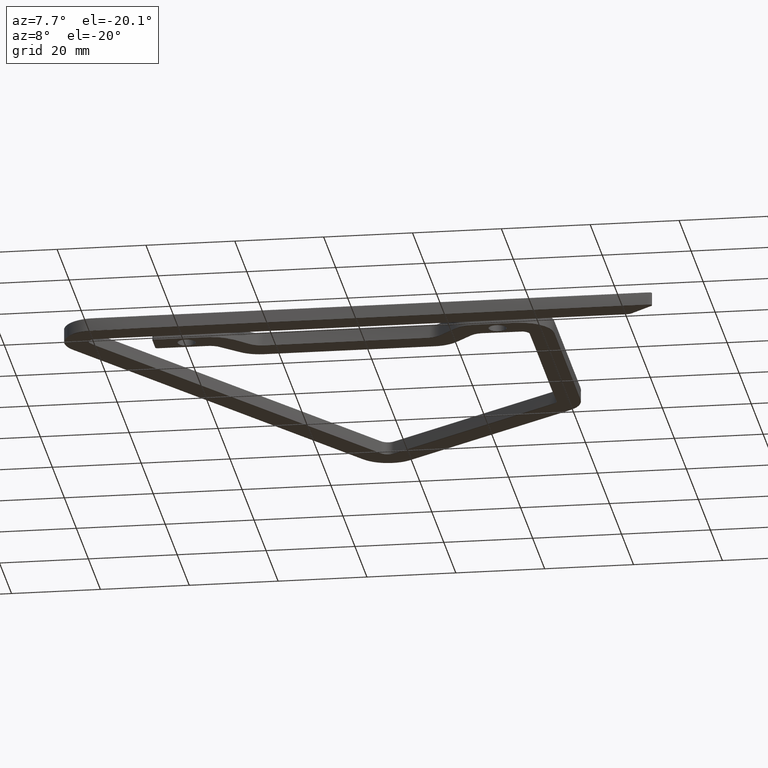
[diagram: clean part render]
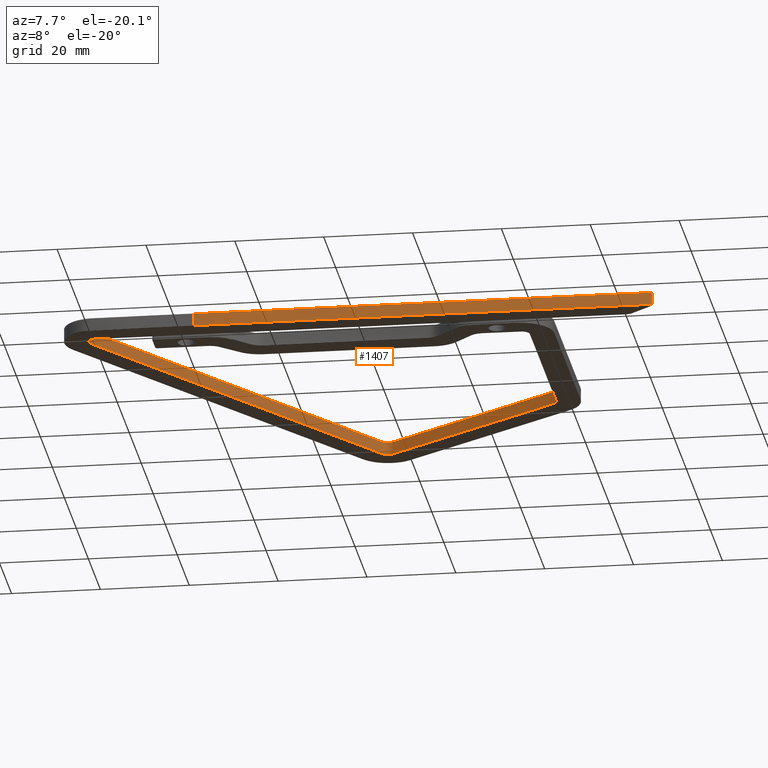
[diagram: same view with one face highlighted and labeled with its STEP entity id]
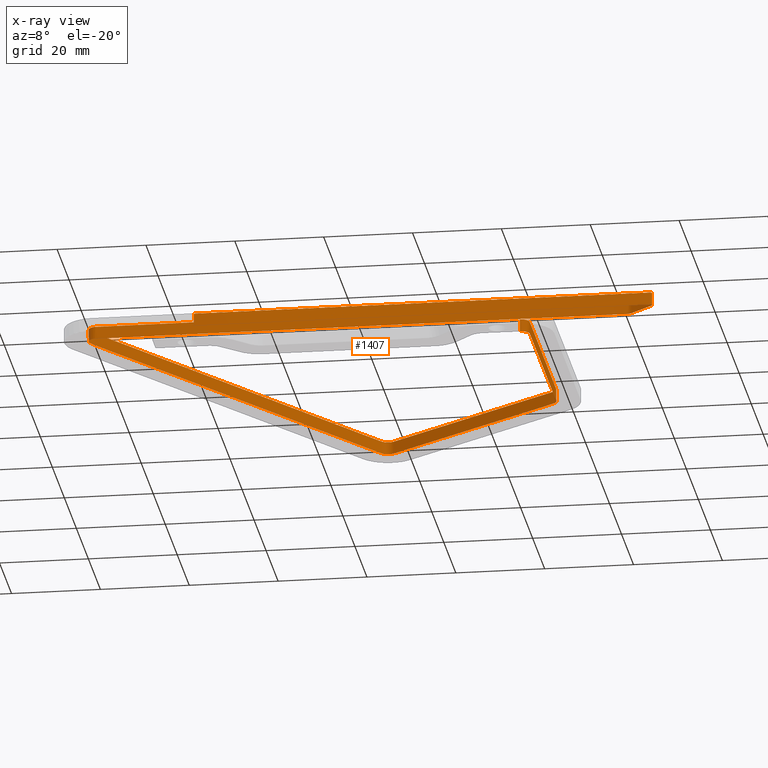
[diagram: x-ray of the same camera — body ghosted, the highlighted face saturated]
A machine part, auxiliary view. The second image highlights one B-rep face of the part: STEP entity #1407.
The next image is the same camera in x-ray: the body ghosted, the highlighted face saturated — about 0% of this face is hidden behind the body in this view.
In plain terms, the highlighted face is a freeform B-spline surface patch.
Its self-contained STEP definition (entity closure, byte-faithful):
#7 = CARTESIAN_POINT ( 'NONE',  ( 96.21894280067000693, 34.48193328533962188, 2.900000000000001243 ) ) ;
#37 = DIRECTION ( 'NONE',  ( -0.0000000000000000000, -0.0000000000000000000, -1.000000000000000000 ) ) ;
#41 = CARTESIAN_POINT ( 'NONE',  ( -1.662912527939040874, 8.613161268570534546, 2.900000000000001688 ) ) ;
#49 = CARTESIAN_POINT ( 'NONE',  ( 96.12964492993219778, 14.73710350965732374, 0.09999999999999845124 ) ) ;
#73 = CARTESIAN_POINT ( 'NONE',  ( -1.669430305399574488, 6.365667258156727293, 2.900000000000002132 ) ) ;
#98 = ORIENTED_EDGE ( 'NONE', *, *, #781, .T. ) ;
#105 = CARTESIAN_POINT ( 'NONE',  ( 94.21894280067006378, 13.35870913111391722, 2.900000000000000355 ) ) ;
#110 = CARTESIAN_POINT ( 'NONE',  ( 96.21894280067003535, 58.96053537486641716, 2.900000000000000355 ) ) ;
#142 = CARTESIAN_POINT ( 'NONE',  ( 121.5986268316706571, 4.194230805782643401, 2.900000000000000799 ) ) ;
#180 = CARTESIAN_POINT ( 'NONE',  ( -0.3101443401820461743, 5.519568920171669113, 2.900000000000000799 ) ) ;
#188 = CARTESIAN_POINT ( 'NONE',  ( 96.21894280067003535, 49.09433591561645471, 0.09999999999999982514 ) ) ;
#217 = CARTESIAN_POINT ( 'NONE',  ( 125.5252945399459890, 0.8993653800130788634, 2.899999999999999911 ) ) ;
#252 = CARTESIAN_POINT ( 'NONE',  ( 119.5703320633170819, 5.484750445895559601, 2.899999999999999911 ) ) ;
#287 = CARTESIAN_POINT ( 'NONE',  ( 125.3935086759740756, 0.02441142024603577126, 2.899999999999999911 ) ) ;
#331 = CARTESIAN_POINT ( 'NONE',  ( 54.79265064534521912, 88.96295982538471492, 0.09999999999999210909 ) ) ;
#349 = CARTESIAN_POINT ( 'NONE',  ( 96.21894280066999272, 15.35870913111391900, 2.900000000000001243 ) ) ;
#363 = CARTESIAN_POINT ( 'NONE',  ( 34.76788293554191966, 61.40357061110498904, 2.900000000000001243 ) ) ;
#383 = CARTESIAN_POINT ( 'NONE',  ( 125.5586794392133072, 0.8722857433833154372, 0.1000000000000016709 ) ) ;
#416 = CARTESIAN_POINT ( 'NONE',  ( -0.1034351531348660230, 5.499999999999989342, 0.09999999999999976963 ) ) ;
#426 = CARTESIAN_POINT ( 'NONE',  ( 122.2483281553851242, 3.649066664678452643, 2.900000000000001243 ) ) ;
#448 = CARTESIAN_POINT ( 'NONE',  ( -1.739700917475315523, 8.495409123085179814, 0.09999999999999910349 ) ) ;
#455 = CARTESIAN_POINT ( 'NONE',  ( 96.21894280067000693, 15.60044719721685169, 2.900000000000002576 ) ) ;
#480 = CARTESIAN_POINT ( 'NONE',  ( 4.928110533451541819, 5.499999999999989342, 0.09999999999999975575 ) ) ;
#488 = CARTESIAN_POINT ( 'NONE',  ( 52.94184487968831121, 87.73952379296086690, 2.900000000000001688 ) ) ;
#514 = CARTESIAN_POINT ( 'NONE',  ( 55.32420834904780804, 88.52858161741595211, 0.09999999999999910349 ) ) ;
#522 = CARTESIAN_POINT ( 'NONE',  ( 95.41708266030222774, 60.93239245693894901, 2.900000000000000799 ) ) ;
#555 = CARTESIAN_POINT ( 'NONE',  ( 55.01081051357603968, 88.61751426554006628, 2.899999999999998135 ) ) ;
#577 = CARTESIAN_POINT ( 'NONE',  ( 95.44690880920389020, 60.90819622387207488, 0.09999999999999778511 ) ) ;
#587 = CARTESIAN_POINT ( 'NONE',  ( -1.850914337502815643, 6.730231727285798549, 2.900000000000001243 ) ) ;
#612 = CARTESIAN_POINT ( 'NONE',  ( 95.22722393123679296, 61.05979675962291253, 0.09999999999999779898 ) ) ;
#622 = CARTESIAN_POINT ( 'NONE',  ( 49.77639510909655485, 83.15245922145881252, 2.899999999999999911 ) ) ;
#630 = CARTESIAN_POINT ( 'NONE',  ( 94.21894280067006378, 13.35870913111391722, 0.09999999999999965861 ) ) ;
#726 = CARTESIAN_POINT ( 'NONE',  ( 96.21894280066999272, 15.35870913111391900, 0.09999999999999245603 ) ) ;
#730 = CARTESIAN_POINT ( 'NONE',  ( 119.3679943487727968, 5.500426910037174544, 2.900000000000000799 ) ) ;
#761 = CARTESIAN_POINT ( 'NONE',  ( 124.7760346421878950, 1.528069083877816814, 0.09999999999999975575 ) ) ;
#764 = CARTESIAN_POINT ( 'NONE',  ( 89.81942781831651246, 5.500000000000008882, 2.900000000000000355 ) ) ;
#781 = EDGE_CURVE ( 'NONE', #5320, #4764, #1029, .T. ) ;
#800 = CARTESIAN_POINT ( 'NONE',  ( 120.6304073967535118, 5.006663376520280373, 2.899999999999999911 ) ) ;
#842 = CARTESIAN_POINT ( 'NONE',  ( -1.835517616785126815, 5.499999999999973355, 0.09999999999999249767 ) ) ;
#876 = CARTESIAN_POINT ( 'NONE',  ( 122.2483281553851242, 3.649066664678452643, 0.09999999999999245603 ) ) ;
#895 = CARTESIAN_POINT ( 'NONE',  ( 125.3996810991241091, 0.02765937304082516715, 0.09999999999999913125 ) ) ;
#906 = CARTESIAN_POINT ( 'NONE',  ( 123.8965498565662386, 2.266044443118975238, 2.900000000000001243 ) ) ;
#928 = CARTESIAN_POINT ( 'NONE',  ( 26.35147508182502918, 49.20732392168764591, 0.09999999999999975575 ) ) ;
#937 = CARTESIAN_POINT ( 'NONE',  ( 95.85824930401631150, 14.20362827286972163, 2.899999999999999023 ) ) ;
#960 = CARTESIAN_POINT ( 'NONE',  ( 0.5255080576883410792, 5.499999999999990230, 0.09999999999999976963 ) ) ;
#969 = CARTESIAN_POINT ( 'NONE',  ( 82.15556042219267852, 70.08031382690435862, 2.900000000000001243 ) ) ;
#991 = CARTESIAN_POINT ( 'NONE',  ( 120.4179831461176207, 5.169278409715654554, 0.09999999999999910349 ) ) ;
#1018 = VERTEX_POINT ( 'NONE', #105 ) ;
#1024 = CARTESIAN_POINT ( 'NONE',  ( 55.19337869877537628, 88.57252792141468944, 0.1000000000000004080 ) ) ;
#1029 = LINE ( 'NONE', #4156, #1349 ) ;
#1032 = CARTESIAN_POINT ( 'NONE',  ( 95.08713450679751134, 61.15646992162913165, 2.900000000000003020 ) ) ;
#1057 = CARTESIAN_POINT ( 'NONE',  ( 10.76896077500463456, 26.62664676932903873, 0.09999999999999975575 ) ) ;
#1065 = CARTESIAN_POINT ( 'NONE',  ( 95.71733756115908420, 60.67617961918844571, 2.900000000000000799 ) ) ;
#1097 = CARTESIAN_POINT ( 'NONE',  ( -2.011734194703503675, 7.666160446861231215, 2.899999999999999911 ) ) ;
#1106 = CARTESIAN_POINT ( 'NONE',  ( 94.41259131196564169, 13.36752039184894869, 0.1000000000000003803 ) ) ;
#1122 = CARTESIAN_POINT ( 'NONE',  ( 95.55036925853777063, 60.82381422320698050, 0.09999999999999845124 ) ) ;
#1132 = CARTESIAN_POINT ( 'NONE',  ( 55.26572882147539900, 88.54925701762053336, 2.899999999999998135 ) ) ;
#1141 = CARTESIAN_POINT ( 'NONE',  ( 94.24333449672938912, 13.35882086611803743, 0.09999999999999910349 ) ) ;
#1166 = CARTESIAN_POINT ( 'NONE',  ( 101.3719213716443761, -3.171558779870961713E-15, 2.899999999999999911 ) ) ;
#1200 = CARTESIAN_POINT ( 'NONE',  ( -0.4462463425858544386, 5.545680046173584898, 2.900000000000000355 ) ) ;
#1208 = CARTESIAN_POINT ( 'NONE',  ( 95.47524190458655369, 13.79064053184755068, 0.09999999999999910349 ) ) ;
#1235 = CARTESIAN_POINT ( 'NONE',  ( -0.7067457300811643695, 5.624096816675404398, 2.900000000000000355 ) ) ;
#1271 = CARTESIAN_POINT ( 'NONE',  ( 122.7915607669213216, -3.234050716792778539E-16, 2.900000000000000355 ) ) ;
#1304 = CARTESIAN_POINT ( 'NONE',  ( 121.0607099687202606, 4.645596647088345854, 0.09999999999999877043 ) ) ;
#1307 = CARTESIAN_POINT ( 'NONE',  ( 1.308657243949248317, 5.499999999999989342, 2.899999999999999911 ) ) ;
#1349 = VECTOR ( 'NONE', #37, 1000.000000000000000 ) ;
#1354 = CARTESIAN_POINT ( 'NONE',  ( 56.83464182742267923, -9.094957021439823720E-15, 0.09999999999999245603 ) ) ;
#1376 = CARTESIAN_POINT ( 'NONE',  ( 22.64027386468194791, -1.354706778582924256E-14, 0.09999999999999974187 ) ) ;
#1388 = CARTESIAN_POINT ( 'NONE',  ( 96.22013445181568159, 15.38187159650369296, 2.900000000000000799 ) ) ;
#1390 = CARTESIAN_POINT ( 'NONE',  ( 95.90710513327326225, 60.59062311676935053, 2.900000000000001243 ) ) ;
#1407 = ADVANCED_FACE ( 'NONE', ( #4066 ), #6571, .F. ) ;
#1418 = CARTESIAN_POINT ( 'NONE',  ( 95.57899864678380197, 13.86324983730670724, 2.899999999999999023 ) ) ;
#1420 = CARTESIAN_POINT ( 'NONE',  ( 120.6001064542039956, 5.032088886237930936, 2.900000000000001243 ) ) ;
#1442 = CARTESIAN_POINT ( 'NONE',  ( 53.39668408509412956, 88.23867584260203500, 0.1000000000000003941 ) ) ;
#1452 = CARTESIAN_POINT ( 'NONE',  ( 119.7896606317419241, 5.500000000000013323, 2.900000000000000799 ) ) ;
#1474 = CARTESIAN_POINT ( 'NONE',  ( -1.572281294317413591, 6.256836303454005765, 0.09999999999999911737 ) ) ;
#1482 = CARTESIAN_POINT ( 'NONE',  ( 96.21894280066999272, 16.83889279891940305, 2.899999999999999467 ) ) ;
#1484 = CARTESIAN_POINT ( 'NONE',  ( 53.64029233386113305, 88.75164649408742434, 0.09999999999999210909 ) ) ;
#1507 = CARTESIAN_POINT ( 'NONE',  ( 119.5210097529654831, 5.493287019251151371, 0.09999999999999975575 ) ) ;
#1539 = CARTESIAN_POINT ( 'NONE',  ( -0.2292130147480047897, 5.509072619489531419, 0.1000000000000010464 ) ) ;
#1547 = CARTESIAN_POINT ( 'NONE',  ( 96.22299423329454271, 59.34705609962890804, 2.900000000000000355 ) ) ;
#1573 = CARTESIAN_POINT ( 'NONE',  ( -1.797484513991860711, 6.583950218906611696, 0.09999999999999910349 ) ) ;
#1581 = CARTESIAN_POINT ( 'NONE',  ( 90.49640617066827986, 64.32444798950508869, 2.900000000000002132 ) ) ;
#1605 = CARTESIAN_POINT ( 'NONE',  ( 96.21894280067004956, 51.18748912988994704, 0.09999999999999983902 ) ) ;
#1614 = CARTESIAN_POINT ( 'NONE',  ( 52.86647702800755155, 87.63030796982984327, 2.900000000000000799 ) ) ;
#1622 = CARTESIAN_POINT ( 'NONE',  ( 94.97424880300368955, 13.49678575543643078, 0.09999999999999910349 ) ) ;
#1647 = CARTESIAN_POINT ( 'NONE',  ( -0.8319134693405536574, 5.676117231276328390, 2.899999999999998579 ) ) ;
#1656 = CARTESIAN_POINT ( 'NONE',  ( 96.21894280066993588, 17.99771021622897393, 0.09999999999999974187 ) ) ;
#1665 = ORIENTED_EDGE ( 'NONE', *, *, #2876, .T. ) ;
#1683 = CARTESIAN_POINT ( 'NONE',  ( 55.95664059407690161, 88.15971154780989139, 2.900000000000000799 ) ) ;
#1724 = CARTESIAN_POINT ( 'NONE',  ( 95.97570678657110932, 14.38353915965539365, 0.09999999999999843736 ) ) ;
#1743 = CARTESIAN_POINT ( 'NONE',  ( 80.94770686337628263, 70.91383158342721060, 0.09999999999999939493 ) ) ;
#1753 = CARTESIAN_POINT ( 'NONE',  ( 119.7726144326182975, 5.451623265195431500, 2.900000000000000799 ) ) ;
#1761 = CARTESIAN_POINT ( 'NONE',  ( 96.18123379980369236, 14.92653089800021249, 0.1000000000000003941 ) ) ;
#1790 = CARTESIAN_POINT ( 'NONE',  ( 125.7170179077414787, 0.6069480568285037236, 2.899999999999999911 ) ) ;
#1823 = CARTESIAN_POINT ( 'NONE',  ( 125.7115669566015441, 0.6674237104732073655, 0.09999999999999972800 ) ) ;
#1827 = CARTESIAN_POINT ( 'NONE',  ( 6.705655449703358251, 5.499999999999988454, 2.900000000000000355 ) ) ;
#1859 = CARTESIAN_POINT ( 'NONE',  ( 125.6163556804788755, 0.1651900073190799845, 0.09999999999999845124 ) ) ;
#1861 = CARTESIAN_POINT ( 'NONE',  ( 125.2531657625834356, -0.004223861649162077153, 2.899999999999999911 ) ) ;
#1871 = CARTESIAN_POINT ( 'NONE',  ( 125.5447715577473815, 0.8830222215594974999, 0.09999999999999245603 ) ) ;
#1891 = CARTESIAN_POINT ( 'NONE',  ( 95.39051567592385084, 13.35870913111394209, 0.09999999999999258093 ) ) ;
#1892 = CARTESIAN_POINT ( 'NONE',  ( 54.91807904712987209, -9.344493722748866123E-15, 0.09999999999999975575 ) ) ;
#1907 = CARTESIAN_POINT ( 'NONE',  ( 125.2233777529041276, 0.0000000000000000000, 2.900000000000001243 ) ) ;
#1928 = CARTESIAN_POINT ( 'NONE',  ( 96.21894280067002114, 14.18713625586011950, 0.09999999999999258093 ) ) ;
#1940 = CARTESIAN_POINT ( 'NONE',  ( 125.5447715577473815, 0.8830222215594974999, 2.900000000000001243 ) ) ;
#1960 = CARTESIAN_POINT ( 'NONE',  ( -1.193189176330409884, 5.889525180472523047, 0.09999999999999910349 ) ) ;
#1970 = CARTESIAN_POINT ( 'NONE',  ( 39.77151041161032907, 5.499999999999998224, 2.900000000000001243 ) ) ;
#1994 = CARTESIAN_POINT ( 'NONE',  ( 77.63394570462634192, 5.500000000000005329, 0.09999999999999972800 ) ) ;
#2002 = CARTESIAN_POINT ( 'NONE',  ( 96.07202218299950403, 14.59209142181646612, 2.899999999999999467 ) ) ;
#2004 = CARTESIAN_POINT ( 'NONE',  ( 22.64027386468194791, -1.354706778582924256E-14, 0.09999999999999245603 ) ) ;
#2026 = CARTESIAN_POINT ( 'NONE',  ( 43.13264433532411601, 73.52497623961255613, 0.09999999999999978351 ) ) ;
#2056 = CARTESIAN_POINT ( 'NONE',  ( -1.939325711938766794, 8.006386807793564486, 0.09999999999999976963 ) ) ;
#2064 = CARTESIAN_POINT ( 'NONE',  ( -1.209956552934632557, 9.267954873336512023, 2.899999999999999911 ) ) ;
#2072 = B_SPLINE_CURVE_WITH_KNOTS ( 'NONE', 3,
 ( #1376, #1892, #5607, #3990, #3514, #2996, #6093, #3482, #5575, #895, #4396, #1859, #5092, #6056, #1823, #2344, #4433, #383, #3887, #5985, #6540, #761, #3921, #6022, #1304, #3407, #5508, #2379, #6225, #991, #5257, #4088, #6255, #5188, #1507, #2090, #2513, #3090, #5124, #3546, #1994, #2481, #5771, #480, #960, #4603, #416, #1539, #2545, #5157, #6191, #6710, #1960, #6159, #5224, #1474, #1573, #3674, #5638, #6287, #3156, #3579, #2056, #2576, #4570, #448, #4666, #4184, #6744, #5672, #1057, #928, #2026, #6677, #4635, #4056, #3124, #3060, #1442, #3027, #4119, #6775, #4151, #3609, #5703, #3641, #5735, #1024, #514, #2609, #4700, #6809, #5907, #2744, #3259, #4801, #1743, #6322, #612, #577, #1122, #6355, #2192, #3737, #4317, #2710, #5322, #3224, #5802, #5358, #1605, #3329 ),
 .UNSPECIFIED., .F., .F.,
 ( 4, 1, 1, 1, 1, 2, 2, 2, 2, 2, 2, 2, 1, 1, 1, 1, 1, 2, 2, 2, 2, 2, 2, 1, 1, 1, 1, 1, 1, 1, 1, 2, 2, 2, 2, 2, 2, 2, 2, 2, 2, 2, 2, 1, 1, 1, 1, 1, 2, 2, 2, 2, 2, 2, 2, 2, 2, 1, 1, 1, 1, 1, 1, 2, 2, 2, 2, 2, 1, 1, 4 ),
 ( 0.4076393116490087398, 0.4964430352735451080, 0.4992181516368118799, 0.5006057098184453213, 0.5012994889092620143, 0.5016463784546703053, 0.5018198232273745063, 0.5019932680000787073, 0.5023401575454871093, 0.5026870470908955113, 0.5027737694772476118, 0.5028604918635998233, 0.5030339366363040243, 0.5033808261817125373, 0.5047683843633464784, 0.5075435007266142495, 0.5082372798174311646, 0.5085841693628396776, 0.5087576141355438786, 0.5089310589082481906, 0.5092779484536565926, 0.5096248379990651056, 0.5099717275444736186, 0.5103186170898821317, 0.5130937334531497918, 0.5186439661796852230, 0.5408448970858269478, 0.5852467588981105084, 0.6074476898042522333, 0.6185481552573230957, 0.6192419343481400107, 0.6195888238935485237, 0.6199357134389569257, 0.6202826029843653277, 0.6206294925297738407, 0.6209763820751823538, 0.6213232716205907558, 0.6220170507114076708, 0.6223639402568161838, 0.6227108298022245858, 0.6230577193476330988, 0.6234046088930416119, 0.6237514984384500139, 0.6240983879838585269, 0.6296486207103939581, 0.6740504825226771857, 0.6962514134288189105, 0.7073518788818895509, 0.7076987684272981749, 0.7080456579727065769, 0.7083925475181149789, 0.7087394370635234919, 0.7090863266089320049, 0.7094332161543404069, 0.7097801056997488089, 0.7101269952451573220, 0.7104738847905658350, 0.7108207743359742370, 0.7115145534267912630, 0.7129021116084250931, 0.7184523443349604133, 0.7406532752411021381, 0.7517537406941730005, 0.7521006302395814025, 0.7524475197849898045, 0.7531412988758066085, 0.7534881884212151215, 0.7538350779666236345, 0.7545288570574404385, 0.7573039734207082097, 0.7628542061472436409 ),
 .UNSPECIFIED. ) ;
#2090 = CARTESIAN_POINT ( 'NONE',  ( 119.3957749032943383, 5.500000000000016875, 0.09999999999999975575 ) ) ;
#2098 = CARTESIAN_POINT ( 'NONE',  ( 54.08993989231007760, 88.58414497791491726, 2.900000000000000799 ) ) ;
#2133 = CARTESIAN_POINT ( 'NONE',  ( 53.71682459312327040, 88.45472849152547212, 2.900000000000000355 ) ) ;
#2167 = CARTESIAN_POINT ( 'NONE',  ( -1.496702047182305373, 6.145979721430232523, 2.900000000000001243 ) ) ;
#2192 = CARTESIAN_POINT ( 'NONE',  ( 95.97663079519298890, 60.31546844487361625, 0.09999999999999910349 ) ) ;
#2203 = CARTESIAN_POINT ( 'NONE',  ( 96.21894280067006378, 44.78871311250879472, 2.900000000000001243 ) ) ;
#2230 = B_SPLINE_CURVE_WITH_KNOTS ( 'NONE', 3,
 ( #188, #2245, #3243, #5341, #1656, #4268, #6375, #6443, #4332, #1761, #49, #1724, #3822, #2282, #1208, #3860, #1622, #3721, #5819, #3310, #1106, #5306, #5855, #2692, #1141, #5411, #630 ),
 .UNSPECIFIED., .F., .F.,
 ( 4, 1, 1, 1, 1, 2, 2, 2, 2, 2, 2, 2, 2, 1, 2, 4 ),
 ( 0.7628542061472436409, 0.7791418552700588585, 0.7872856798314664672, 0.7913575921121702716, 0.7923755701823462783, 0.7926300646998902799, 0.7928845592174341705, 0.7933935482525221738, 0.7939025372876101772, 0.7944115263226981805, 0.7949205153577860727, 0.7951750098753300744, 0.7953022571341020752, 0.7953658807634880201, 0.7953976925781810481, 0.7954295043928740760 ),
 .UNSPECIFIED. ) ;
#2238 = CARTESIAN_POINT ( 'NONE',  ( 125.5529802462663156, 0.8776085497718458805, 2.900000000000002132 ) ) ;
#2245 = CARTESIAN_POINT ( 'NONE',  ( 96.21894280067002114, 42.95179256758928688, 0.09999999999999985290 ) ) ;
#2274 = CARTESIAN_POINT ( 'NONE',  ( 120.9531472083926076, 4.735852519607712807, 2.899999999999999911 ) ) ;
#2282 = CARTESIAN_POINT ( 'NONE',  ( 95.62315310426301096, 13.92160691254623117, 0.09999999999999910349 ) ) ;
#2312 = CARTESIAN_POINT ( 'NONE',  ( 125.7273790111157155, 0.5339708486928733677, 2.900000000000000799 ) ) ;
#2343 = CARTESIAN_POINT ( 'NONE',  ( 96.21894280067000693, 44.66997183290247619, 2.900000000000001243 ) ) ;
#2344 = CARTESIAN_POINT ( 'NONE',  ( 125.6238398536249861, 0.8010856493191218508, 0.09999999999999975575 ) ) ;
#2379 = CARTESIAN_POINT ( 'NONE',  ( 120.5722576035508098, 5.056337207260811262, 0.09999999999999842348 ) ) ;
#2383 = CARTESIAN_POINT ( 'NONE',  ( 29.37304791387054337, 5.499999999999995559, 2.900000000000000799 ) ) ;
#2394 = CARTESIAN_POINT ( 'NONE',  ( 52.97487304696946353, 87.78738502816494815, 0.09999999999999245603 ) ) ;
#2414 = CARTESIAN_POINT ( 'NONE',  ( 96.21894280067002114, 14.18713625586011950, 2.900000000000000799 ) ) ;
#2421 = EDGE_CURVE ( 'NONE', #1018, #6316, #2452, .T. ) ;
#2430 = CARTESIAN_POINT ( 'NONE',  ( 16.56089282411437935, 35.01975619404502993, 0.09999999999999245603 ) ) ;
#2452 = LINE ( 'NONE', #4539, #4199 ) ;
#2460 = CARTESIAN_POINT ( 'NONE',  ( 120.2361362199377766, 5.337496175570231927, 0.09999999999999295563 ) ) ;
#2481 = CARTESIAN_POINT ( 'NONE',  ( 45.43205331047283835, 5.500000000000000000, 0.09999999999999974187 ) ) ;
#2492 = CARTESIAN_POINT ( 'NONE',  ( 22.64027386468194791, -1.354706778582924256E-14, 2.900000000000001243 ) ) ;
#2513 = CARTESIAN_POINT ( 'NONE',  ( 119.1441976189649949, 5.500000000000016875, 0.09999999999999974187 ) ) ;
#2523 = CARTESIAN_POINT ( 'NONE',  ( -2.688617858962372598, 7.125221492082187247, 0.09999999999999249767 ) ) ;
#2545 = CARTESIAN_POINT ( 'NONE',  ( -0.4807363971062152963, 5.554435054516693171, 0.1000000000000010464 ) ) ;
#2552 = CARTESIAN_POINT ( 'NONE',  ( 94.36766653312432140, 13.35870913111391900, 2.900000000000001243 ) ) ;
#2576 = CARTESIAN_POINT ( 'NONE',  ( -1.901998002886457595, 8.132328546573225125, 0.1000000000000004219 ) ) ;
#2584 = CARTESIAN_POINT ( 'NONE',  ( 52.52732169544420771, 87.13883676574042170, 2.899999999999999911 ) ) ;
#2609 = CARTESIAN_POINT ( 'NONE',  ( 55.56987952208751125, 88.41716222788761570, 0.09999999999999910349 ) ) ;
#2617 = CARTESIAN_POINT ( 'NONE',  ( -1.989857847754173070, 7.256819641436488943, 2.899999999999999467 ) ) ;
#2639 = ORIENTED_EDGE ( 'NONE', *, *, #2421, .F. ) ;
#2650 = CARTESIAN_POINT ( 'NONE',  ( 54.48296238212639508, 88.65108594497139904, 2.900000000000000799 ) ) ;
#2683 = CARTESIAN_POINT ( 'NONE',  ( 54.21992511462047304, 88.61531183880946116, 2.899999999999999467 ) ) ;
#2692 = CARTESIAN_POINT ( 'NONE',  ( 94.26766372608811650, 13.35926563385492294, 0.09999999999999911737 ) ) ;
#2710 = CARTESIAN_POINT ( 'NONE',  ( 96.20958608965703718, 59.55987369322294001, 0.1000000000000010603 ) ) ;
#2720 = CARTESIAN_POINT ( 'NONE',  ( 55.56742693188699889, 88.41457239420223857, 2.899999999999999467 ) ) ;
#2744 = CARTESIAN_POINT ( 'NONE',  ( 57.00205516496423996, 87.43828998026805266, 0.09999999999999974187 ) ) ;
#2754 = CARTESIAN_POINT ( 'NONE',  ( 0.09433264765458697354, 5.499999999999989342, 2.900000000000000355 ) ) ;
#2828 = CARTESIAN_POINT ( 'NONE',  ( 120.2910361205013459, 5.250911757264743684, 2.899999999999999911 ) ) ;
#2858 = CARTESIAN_POINT ( 'NONE',  ( 96.21894280066997851, 59.99654840662676492, 0.09999999999999276135 ) ) ;
#2862 = CARTESIAN_POINT ( 'NONE',  ( 41.16536739573174941, -1.113509841090832691E-14, 2.899999999999999911 ) ) ;
#2876 = EDGE_CURVE ( 'NONE', #4764, #3735, #2072, .T. ) ;
#2897 = CARTESIAN_POINT ( 'NONE',  ( -0.04065557998276780188, 5.495843345066742103, 2.900000000000001243 ) ) ;
#2929 = CARTESIAN_POINT ( 'NONE',  ( 96.21894280066997851, 59.99654840662676492, 2.900000000000001243 ) ) ;
#2944 = CARTESIAN_POINT ( 'NONE',  ( 34.76788293554191966, 61.40357061110498904, 0.09999999999999245603 ) ) ;
#2996 = CARTESIAN_POINT ( 'NONE',  ( 124.6431816482771069, -7.715975901921304459E-17, 0.09999999999999972800 ) ) ;
#3007 = CARTESIAN_POINT ( 'NONE',  ( 79.54302082322061551, 5.500000000000007105, 2.900000000000001243 ) ) ;
#3027 = CARTESIAN_POINT ( 'NONE',  ( 53.62083232566645563, 88.38865598511490873, 0.1000000000000004080 ) ) ;
#3035 = CARTESIAN_POINT ( 'NONE',  ( 94.21894280067006378, 13.35870913111391722, 2.900000000000000355 ) ) ;
#3037 = CARTESIAN_POINT ( 'NONE',  ( 120.6001064542039956, 5.032088886237930936, 0.09999999999999245603 ) ) ;
#3060 = CARTESIAN_POINT ( 'NONE',  ( 53.29014971410558132, 88.15039160304222321, 0.09999999999999845124 ) ) ;
#3090 = CARTESIAN_POINT ( 'NONE',  ( 118.0120998394829996, 5.500000000000016875, 0.09999999999999976963 ) ) ;
#3098 = CARTESIAN_POINT ( 'NONE',  ( 54.87795144305011519, 88.63924900435796417, 2.900000000000001243 ) ) ;
#3124 = CARTESIAN_POINT ( 'NONE',  ( 53.10221089109680292, 87.95960969256769602, 0.09999999999999846512 ) ) ;
#3132 = CARTESIAN_POINT ( 'NONE',  ( 55.38897880215547787, 88.50286995990219907, 2.900000000000000355 ) ) ;
#3156 = CARTESIAN_POINT ( 'NONE',  ( -2.001095946140661663, 7.613589056599715299, 0.09999999999999847899 ) ) ;
#3165 = CARTESIAN_POINT ( 'NONE',  ( 52.97863918444099340, 87.79475205198339438, 2.900000000000001243 ) ) ;
#3197 = CARTESIAN_POINT ( 'NONE',  ( -1.968822475276297723, 7.122888753189652533, 2.899999999999999467 ) ) ;
#3224 = CARTESIAN_POINT ( 'NONE',  ( 96.21894280067003535, 59.03681368341562319, 0.09999999999999976963 ) ) ;
#3234 = CARTESIAN_POINT ( 'NONE',  ( 95.88487689663936919, 60.46274883248452170, 2.900000000000001243 ) ) ;
#3243 = CARTESIAN_POINT ( 'NONE',  ( 96.21894280066999272, 33.73797754554855288, 0.09999999999999971412 ) ) ;
#3259 = CARTESIAN_POINT ( 'NONE',  ( 59.41858882260216745, 85.77068408700885982, 0.09999999999999956146 ) ) ;
#3269 = CARTESIAN_POINT ( 'NONE',  ( 118.1536683985255110, 5.500000000000015099, 2.900000000000000355 ) ) ;
#3302 = CARTESIAN_POINT ( 'NONE',  ( 104.9310227944280030, 5.500000000000014211, 2.900000000000001243 ) ) ;
#3310 = CARTESIAN_POINT ( 'NONE',  ( 94.46043358996081452, 13.37276128401591890, 0.1000000000000010464 ) ) ;
#3329 = CARTESIAN_POINT ( 'NONE',  ( 96.21894280067003535, 49.09433591561645471, 0.09999999999999982514 ) ) ;
#3341 = CARTESIAN_POINT ( 'NONE',  ( 125.3908196184297452, 1.012203237059972061, 2.899999999999999911 ) ) ;
#3377 = CARTESIAN_POINT ( 'NONE',  ( 125.1795611049081316, -4.478686708606464698E-17, 2.900000000000000355 ) ) ;
#3407 = CARTESIAN_POINT ( 'NONE',  ( 120.7673948629202982, 4.891717244183857005, 0.09999999999999972800 ) ) ;
#3410 = CARTESIAN_POINT ( 'NONE',  ( 119.3005305172483475, 5.500000000000015099, 2.899999999999999911 ) ) ;
#3443 = CARTESIAN_POINT ( 'NONE',  ( 96.21894280067003535, 59.32560318379675834, 2.900000000000001243 ) ) ;
#3459 = CARTESIAN_POINT ( 'NONE',  ( 119.3145312348308664, 5.500000000000015987, 2.900000000000001243 ) ) ;
#3482 = CARTESIAN_POINT ( 'NONE',  ( 125.2105649424996869, -1.694065894508119196E-18, 0.09999999999999974187 ) ) ;
#3495 = CARTESIAN_POINT ( 'NONE',  ( 95.90710513327326225, 60.59062311676935053, 0.09999999999999276135 ) ) ;
#3514 = CARTESIAN_POINT ( 'NONE',  ( 123.7605854128195517, -1.945353169326122196E-16, 0.09999999999999974187 ) ) ;
#3522 = CARTESIAN_POINT ( 'NONE',  ( 94.51368261206825139, 13.37509386375235998, 2.900000000000000355 ) ) ;
#3524 = CARTESIAN_POINT ( 'NONE',  ( 125.7813766489129534, 5.740354031213376490E-15, 2.900000000000001243 ) ) ;
#3546 = CARTESIAN_POINT ( 'NONE',  ( 103.7979832748761169, 5.500000000000014211, 0.09999999999999974187 ) ) ;
#3557 = CARTESIAN_POINT ( 'NONE',  ( -1.835517616785126815, 5.499999999999973355, 2.900000000000001243 ) ) ;
#3579 = CARTESIAN_POINT ( 'NONE',  ( -1.989045377403702020, 7.747204981185906725, 0.09999999999999976963 ) ) ;
#3588 = CARTESIAN_POINT ( 'NONE',  ( 54.79265064534521912, 88.96295982538471492, 2.900000000000000799 ) ) ;
#3609 = CARTESIAN_POINT ( 'NONE',  ( 54.38768477523997547, 88.64236776395507889, 0.1000000000000003803 ) ) ;
#3641 = CARTESIAN_POINT ( 'NONE',  ( 54.79596931493841794, 88.64845418407465161, 0.09999999999999972800 ) ) ;
#3649 = CARTESIAN_POINT ( 'NONE',  ( 95.30574061804178143, 61.00561382315887471, 2.900000000000003464 ) ) ;
#3674 = CARTESIAN_POINT ( 'NONE',  ( -1.902931953397771103, 6.829529888279799010, 0.09999999999999974187 ) ) ;
#3682 = CARTESIAN_POINT ( 'NONE',  ( 96.12130811158834831, 59.99600818247820655, 2.899999999999999911 ) ) ;
#3714 = CARTESIAN_POINT ( 'NONE',  ( 79.56610060845581245, 71.86725291301925722, 2.899999999999999911 ) ) ;
#3721 = CARTESIAN_POINT ( 'NONE',  ( 94.69678105345481356, 13.41423438000773416, 0.09999999999999908962 ) ) ;
#3735 = VERTEX_POINT ( 'NONE', #5519 ) ;
#3737 = CARTESIAN_POINT ( 'NONE',  ( 96.12383846425321110, 59.94905934998348584, 0.09999999999999911737 ) ) ;
#3747 = CARTESIAN_POINT ( 'NONE',  ( 55.79268601064369193, 88.27285362166257698, 2.899999999999999467 ) ) ;
#3782 = CARTESIAN_POINT ( 'NONE',  ( 96.21894280067002114, 59.21820487054564808, 2.899999999999999911 ) ) ;
#3822 = CARTESIAN_POINT ( 'NONE',  ( 95.87151597125820501, 14.21587437526287623, 0.09999999999999910349 ) ) ;
#3852 = CARTESIAN_POINT ( 'NONE',  ( 120.1682515501668576, 5.313951682931214116, 2.899999999999999911 ) ) ;
#3860 = CARTESIAN_POINT ( 'NONE',  ( 95.15277441556365545, 13.57964053054457487, 0.09999999999999908962 ) ) ;
#3887 = CARTESIAN_POINT ( 'NONE',  ( 125.5337653321713134, 0.8922575413809900047, 0.09999999999999974187 ) ) ;
#3890 = CARTESIAN_POINT ( 'NONE',  ( 125.7110971829653039, 0.3188511526401711649, 2.900000000000001243 ) ) ;
#3921 = CARTESIAN_POINT ( 'NONE',  ( 123.5050025170543222, 2.594591671291840207, 0.09999999999999974187 ) ) ;
#3924 = CARTESIAN_POINT ( 'NONE',  ( 59.59623786609377305, 5.500000000000002665, 2.900000000000001243 ) ) ;
#3958 = CARTESIAN_POINT ( 'NONE',  ( 116.4235598656226074, -1.170263177932862206E-15, 2.900000000000000355 ) ) ;
#3968 = CARTESIAN_POINT ( 'NONE',  ( 125.2233777529041276, 0.0000000000000000000, 0.09999999999999245603 ) ) ;
#3990 = CARTESIAN_POINT ( 'NONE',  ( 121.9953929419043277, -4.292851473767806229E-16, 0.09999999999999975575 ) ) ;
#4002 = CARTESIAN_POINT ( 'NONE',  ( 94.80048847192297501, 13.43948905056559795, 2.900000000000001243 ) ) ;
#4004 = CARTESIAN_POINT ( 'NONE',  ( 55.75691211126773084, 88.29754053849310935, 2.900000000000001243 ) ) ;
#4023 = CARTESIAN_POINT ( 'NONE',  ( 96.21894280067000693, 44.66997183290247619, 0.09999999999999245603 ) ) ;
#4035 = CARTESIAN_POINT ( 'NONE',  ( 91.02900979016339988, -4.547478510719911860E-15, 2.900000000000001243 ) ) ;
#4056 = CARTESIAN_POINT ( 'NONE',  ( 53.02154764542162013, 87.85502135553240066, 0.09999999999999975575 ) ) ;
#4066 = FACE_OUTER_BOUND ( 'NONE', #6494, .T. ) ;
#4086 = ORIENTED_EDGE ( 'NONE', *, *, #5099, .T. ) ;
#4088 = CARTESIAN_POINT ( 'NONE',  ( 120.1363186063000370, 5.328013599279043611, 0.1000000000000010603 ) ) ;
#4097 = CARTESIAN_POINT ( 'NONE',  ( 96.21894280066999272, 15.45474771466360053, 2.900000000000002576 ) ) ;
#4119 = CARTESIAN_POINT ( 'NONE',  ( 53.73952712643745855, 88.45183386679707382, 0.09999999999999911737 ) ) ;
#4151 = CARTESIAN_POINT ( 'NONE',  ( 54.12240581628236669, 88.59299829521499703, 0.1000000000000004358 ) ) ;
#4156 = CARTESIAN_POINT ( 'NONE',  ( 22.64027386468194791, -1.354706778582924256E-14, 3.000000000000000000 ) ) ;
#4159 = CARTESIAN_POINT ( 'NONE',  ( -1.624479737178783800, 8.667267846116017083, 2.900000000000000799 ) ) ;
#4182 = VERTEX_POINT ( 'NONE', #6482 ) ;
#4184 = CARTESIAN_POINT ( 'NONE',  ( -1.517252428450003521, 8.822651322276923835, 0.09999999999999975575 ) ) ;
#4192 = CARTESIAN_POINT ( 'NONE',  ( 58.36130781776360266, 86.50029446463678084, 2.900000000000000799 ) ) ;
#4198 = B_SPLINE_CURVE_WITH_KNOTS ( 'NONE', 3,
 ( #3035, #2552, #3522, #4002, #5070, #5646, #1418, #937, #6718, #2002, #5132, #5164, #6105, #1388, #4097, #455, #1482, #6136, #4643, #5710 ),
 .UNSPECIFIED., .F., .F.,
 ( 4, 2, 2, 2, 2, 2, 2, 2, 1, 1, 4 ),
 ( 0.0000000000000000000, 0.0004402009367511897130, 0.0008804018735023794260, 0.001760803747004721339, 0.002201004683755892078, 0.002641205620507063034, 0.003081406557258233991, 0.003301507025633822288, 0.003521607494009410585, 0.007043214988018808159, 0.01408642997603760764 ),
 .UNSPECIFIED. ) ;
#4199 = VECTOR ( 'NONE', #6649, 1000.000000000000000 ) ;
#4226 = CARTESIAN_POINT ( 'NONE',  ( -1.768136134267678461, 8.444096897773917476, 2.899999999999999467 ) ) ;
#4243 = ORIENTED_EDGE ( 'NONE', *, *, #4887, .T. ) ;
#4259 = CARTESIAN_POINT ( 'NONE',  ( -1.185873955373364375, 5.883808506032922381, 2.900000000000000355 ) ) ;
#4268 = CARTESIAN_POINT ( 'NONE',  ( 96.21894280067002114, 15.98218818015741860, 0.09999999999999976963 ) ) ;
#4293 = CARTESIAN_POINT ( 'NONE',  ( 96.21894280067000693, 55.61083193103640809, 2.899999999999999911 ) ) ;
#4317 = CARTESIAN_POINT ( 'NONE',  ( 96.16130707354672325, 59.82033988854802686, 0.1000000000000010325 ) ) ;
#4332 = CARTESIAN_POINT ( 'NONE',  ( 96.21606806485023355, 15.21437730237312813, 0.1000000000000003941 ) ) ;
#4396 = CARTESIAN_POINT ( 'NONE',  ( 125.4586711052155579, 0.05416439795810849833, 0.09999999999999845124 ) ) ;
#4399 = CARTESIAN_POINT ( 'NONE',  ( 125.4610386575209020, 0.05430164156753931881, 2.900000000000000799 ) ) ;
#4432 = CARTESIAN_POINT ( 'NONE',  ( 96.21894280067000693, 30.01434048200820115, 0.09999999999999245603 ) ) ;
#4433 = CARTESIAN_POINT ( 'NONE',  ( 125.6033999167204769, 0.8265073514892989914, 0.1000000000000016848 ) ) ;
#4472 = CARTESIAN_POINT ( 'NONE',  ( 125.6270983901392526, 0.8031727709342101340, 2.900000000000001243 ) ) ;
#4482 = CARTESIAN_POINT ( 'NONE',  ( 68.95623626673020112, 79.18892718269871978, 2.900000000000001243 ) ) ;
#4516 = CARTESIAN_POINT ( 'NONE',  ( -2.688617858962372598, 7.125221492082187247, 2.900000000000001243 ) ) ;
#4539 = CARTESIAN_POINT ( 'NONE',  ( 94.21894280067006378, 13.35870913111391722, 3.000000000000000000 ) ) ;
#4547 = CARTESIAN_POINT ( 'NONE',  ( 68.95623626673020112, 79.18892718269871978, 0.09999999999999245603 ) ) ;
#4570 = CARTESIAN_POINT ( 'NONE',  ( -1.802355306097262355, 8.376898594125075093, 0.1000000000000004358 ) ) ;
#4580 = CARTESIAN_POINT ( 'NONE',  ( 56.83464182742267923, -9.094957021439823720E-15, 2.900000000000001243 ) ) ;
#4603 = CARTESIAN_POINT ( 'NONE',  ( 0.1481421311944576547, 5.499999999999989342, 0.09999999999999974187 ) ) ;
#4613 = CARTESIAN_POINT ( 'NONE',  ( 7.105427357601001859E-14, 5.499999999999988454, 0.09999999999999245603 ) ) ;
#4635 = CARTESIAN_POINT ( 'NONE',  ( 52.87171577708681980, 87.63789945983664609, 0.09999999999999976963 ) ) ;
#4643 = CARTESIAN_POINT ( 'NONE',  ( 96.21894280066999272, 23.90531770275223522, 2.899999999999999911 ) ) ;
#4666 = CARTESIAN_POINT ( 'NONE',  ( -1.593902688528793465, 8.715266565032692370, 0.09999999999999907574 ) ) ;
#4675 = CARTESIAN_POINT ( 'NONE',  ( 20.53366865696344234, 40.77671984663043503, 2.900000000000000355 ) ) ;
#4700 = CARTESIAN_POINT ( 'NONE',  ( 55.68394589716169207, 88.34789319477305014, 0.09999999999999975575 ) ) ;
#4708 = CARTESIAN_POINT ( 'NONE',  ( 54.61456825840001272, 88.65578105106681051, 2.900000000000000799 ) ) ;
#4741 = CARTESIAN_POINT ( 'NONE',  ( -1.549111885498027918, 8.776483669247015840, 2.900000000000000799 ) ) ;
#4764 = VERTEX_POINT ( 'NONE', #5615 ) ;
#4775 = CARTESIAN_POINT ( 'NONE',  ( -1.827416126264506335, 8.324110919499384309, 2.900000000000000355 ) ) ;
#4801 = CARTESIAN_POINT ( 'NONE',  ( 68.64535369721963320, 79.40346158547382061, 0.1000000000000005468 ) ) ;
#4811 = CARTESIAN_POINT ( 'NONE',  ( 53.48299991404770282, 88.31712639924009522, 2.900000000000000355 ) ) ;
#4882 = CARTESIAN_POINT ( 'NONE',  ( 116.2647190265118127, 5.500000000000015099, 2.900000000000000355 ) ) ;
#4887 = EDGE_CURVE ( 'NONE', #1018, #4182, #4198, .T. ) ;
#4920 = CARTESIAN_POINT ( 'NONE',  ( 125.6672181667541963, 0.7410895608704841653, 2.900000000000000355 ) ) ;
#4952 = CARTESIAN_POINT ( 'NONE',  ( 94.21894280067006378, 13.35870913111391722, 0.09999999999999245603 ) ) ;
#4956 = CARTESIAN_POINT ( 'NONE',  ( 22.64027386468203673, -1.354706778582923151E-14, 2.900000000000000355 ) ) ;
#4993 = CARTESIAN_POINT ( 'NONE',  ( 123.1047459526530474, 2.930446806857274211, 2.899999999999998579 ) ) ;
#5004 = CARTESIAN_POINT ( 'NONE',  ( 120.2361362199377766, 5.337496175570231927, 2.900000000000000799 ) ) ;
#5023 = CARTESIAN_POINT ( 'NONE',  ( 96.21894280067000693, 30.01434048200820115, 2.900000000000001243 ) ) ;
#5038 = CARTESIAN_POINT ( 'NONE',  ( 52.97487304696946353, 87.78738502816494815, 2.900000000000001243 ) ) ;
#5056 = CARTESIAN_POINT ( 'NONE',  ( 96.21894280067003535, 59.32560318379675834, 0.09999999999999245603 ) ) ;
#5070 = CARTESIAN_POINT ( 'NONE',  ( 94.94237143809718305, 13.48836307868662487, 2.899999999999999911 ) ) ;
#5072 = CARTESIAN_POINT ( 'NONE',  ( 125.7813766489129534, 5.740354031213376490E-15, 0.09999999999999252542 ) ) ;
#5092 = CARTESIAN_POINT ( 'NONE',  ( 125.6906790420927109, 0.2810763541435887247, 0.1000000000000003803 ) ) ;
#5099 = EDGE_CURVE ( 'NONE', #4182, #5320, #5762, .T. ) ;
#5102 = CARTESIAN_POINT ( 'NONE',  ( 79.54302082322061551, 5.500000000000007105, 0.09999999999999245603 ) ) ;
#5124 = CARTESIAN_POINT ( 'NONE',  ( 114.8673837853664423, 5.500000000000009770, 0.09999999999999975575 ) ) ;
#5132 = CARTESIAN_POINT ( 'NONE',  ( 96.12319927526188224, 14.72959350329608874, 2.900000000000002132 ) ) ;
#5134 = CARTESIAN_POINT ( 'NONE',  ( 16.56089282411437935, 35.01975619404502993, 2.900000000000001243 ) ) ;
#5157 = CARTESIAN_POINT ( 'NONE',  ( -0.6082185054189040985, 5.590123823656469426, 0.09999999999999976963 ) ) ;
#5164 = CARTESIAN_POINT ( 'NONE',  ( 96.19514572560956367, 15.01723996171511466, 2.900000000000002132 ) ) ;
#5188 = CARTESIAN_POINT ( 'NONE',  ( 119.7691564852720916, 5.451702436650484707, 0.09999999999999974187 ) ) ;
#5198 = CARTESIAN_POINT ( 'NONE',  ( 53.18847734303250263, 88.05334663115456806, 2.899999999999999911 ) ) ;
#5224 = CARTESIAN_POINT ( 'NONE',  ( -1.487416395883638387, 6.156519752495977826, 0.09999999999999847899 ) ) ;
#5233 = CARTESIAN_POINT ( 'NONE',  ( -0.2678584069252049060, 10.63315266247400359, 2.900000000000000355 ) ) ;
#5257 = CARTESIAN_POINT ( 'NONE',  ( 120.2544992444320968, 5.269984819027323297, 0.09999999999999910349 ) ) ;
#5265 = CARTESIAN_POINT ( 'NONE',  ( 37.41606743345265329, 65.24106422797464688, 2.900000000000001243 ) ) ;
#5298 = CARTESIAN_POINT ( 'NONE',  ( -1.899697140626798397, 6.859979996001429825, 2.899999999999999023 ) ) ;
#5306 = CARTESIAN_POINT ( 'NONE',  ( 94.34034174025082109, 13.36225092148509574, 0.1000000000000003803 ) ) ;
#5320 = VERTEX_POINT ( 'NONE', #5803 ) ;
#5322 = CARTESIAN_POINT ( 'NONE',  ( 96.21894280067002114, 59.42927991109190344, 0.09999999999999974187 ) ) ;
#5332 = CARTESIAN_POINT ( 'NONE',  ( 53.09777911064581701, 87.95433042019185166, 2.899999999999999911 ) ) ;
#5341 = CARTESIAN_POINT ( 'NONE',  ( 96.21894280066999272, 22.98852668650098963, 0.09999999999999974187 ) ) ;
#5358 = CARTESIAN_POINT ( 'NONE',  ( 96.21894280067006378, 54.32721895130005407, 0.09999999999999972800 ) ) ;
#5411 = CARTESIAN_POINT ( 'NONE',  ( 94.22954867635864673, 13.35870913111392078, 0.09999999999999965861 ) ) ;
#5440 = CARTESIAN_POINT ( 'NONE',  ( 125.4715045713395369, 0.9445005228318412716, 2.900000000000001243 ) ) ;
#5475 = CARTESIAN_POINT ( 'NONE',  ( 68.95300769230669857, -7.475158354854892257E-15, 2.900000000000000799 ) ) ;
#5508 = CARTESIAN_POINT ( 'NONE',  ( 120.6207373100202886, 5.014777542731643223, 0.09999999999999972800 ) ) ;
#5511 = CARTESIAN_POINT ( 'NONE',  ( 119.9095412820638415, 5.414476985632917128, 2.899999999999999023 ) ) ;
#5519 = CARTESIAN_POINT ( 'NONE',  ( 96.21894280067003535, 49.09433591561645471, 0.09999999999999982514 ) ) ;
#5554 = CARTESIAN_POINT ( 'NONE',  ( -1.646097287313168955, 8.635941776985063711, 2.900000000000001243 ) ) ;
#5575 = CARTESIAN_POINT ( 'NONE',  ( 125.2736082285390324, -0.001662672601864132122, 0.09999999999999910349 ) ) ;
#5588 = CARTESIAN_POINT ( 'NONE',  ( 91.02900979016339988, -4.547478510719911860E-15, 0.09999999999999245603 ) ) ;
#5607 = CARTESIAN_POINT ( 'NONE',  ( 88.20456564152921430, -4.922956899727489967E-15, 0.09999999999999971412 ) ) ;
#5615 = CARTESIAN_POINT ( 'NONE',  ( 22.64027386468194791, -1.354706778582924256E-14, 0.09999999999999974187 ) ) ;
#5617 = CARTESIAN_POINT ( 'NONE',  ( 119.3145312348308664, 5.500000000000015987, 0.09999999999999245603 ) ) ;
#5638 = CARTESIAN_POINT ( 'NONE',  ( -1.984736232477209317, 7.219835521550134416, 0.09999999999999975575 ) ) ;
#5646 = CARTESIAN_POINT ( 'NONE',  ( 95.34032367585847112, 13.67684161853094693, 2.899999999999999911 ) ) ;
#5648 = CARTESIAN_POINT ( 'NONE',  ( -1.646097287313168955, 8.635941776985063711, 0.09999999999999245603 ) ) ;
#5672 = CARTESIAN_POINT ( 'NONE',  ( -0.09384967926923354353, 10.88530933138669177, 0.09999999999999975575 ) ) ;
#5681 = CARTESIAN_POINT ( 'NONE',  ( 55.75691211126773084, 88.29754053849310935, 0.09999999999999245603 ) ) ;
#5703 = CARTESIAN_POINT ( 'NONE',  ( 54.52268968698435003, 88.65369653777935355, 0.09999999999999975575 ) ) ;
#5710 = CARTESIAN_POINT ( 'NONE',  ( 96.21894280066999272, 26.23650942360428218, 2.899999999999999911 ) ) ;
#5735 = CARTESIAN_POINT ( 'NONE',  ( 54.93006984895411904, 88.63201769713799649, 0.1000000000000004358 ) ) ;
#5745 = CARTESIAN_POINT ( 'NONE',  ( 96.19388509053977998, 59.73344192704191613, 2.899999999999999911 ) ) ;
#5762 = B_SPLINE_CURVE_WITH_KNOTS ( 'NONE', 3,
 ( #5845, #7, #2203, #4293, #6263, #110, #3782, #1547, #5745, #3682, #3234, #1065, #522, #3649, #1032, #6400, #1581, #3714, #5780, #4192, #6332, #1683, #3747, #6297, #5882, #2720, #3132, #1132, #555, #3098, #4708, #2650, #2683, #2098, #2133, #4811, #5198, #5332, #3165, #488, #1614, #2584, #622, #5265, #4675, #6783, #5233, #2064, #4741, #4159, #41, #4226, #4775, #5811, #1097, #2617, #3197, #5298, #587, #73, #2167, #4259, #6366, #1647, #1235, #1200, #180, #2897, #2754, #1307, #1827, #2383, #3924, #764, #3302, #6543, #4882, #3269, #6025, #3410, #730, #5916, #252, #1753, #5511, #3852, #2828, #5950, #800, #2274, #142, #4993, #6509, #3341, #5440, #217, #2238, #4472, #4920, #1790, #2312, #3890, #6577, #4399, #287, #1861, #3377, #5988, #1271, #3958, #1166, #5475, #2862, #4956 ),
 .UNSPECIFIED., .F., .F.,
 ( 4, 1, 1, 1, 2, 2, 2, 2, 2, 1, 1, 1, 1, 1, 1, 2, 2, 2, 2, 2, 2, 2, 2, 2, 2, 1, 1, 1, 1, 1, 1, 1, 2, 2, 2, 2, 2, 2, 2, 2, 2, 2, 2, 1, 1, 1, 1, 1, 1, 1, 1, 2, 2, 2, 2, 2, 2, 1, 1, 1, 1, 2, 2, 2, 2, 2, 2, 2, 1, 1, 1, 1, 4 ),
 ( 0.01408642997603760764, 0.03899827759717731934, 0.04522623950246225377, 0.04678322997878348738, 0.04717247759786381139, 0.04756172521694412847, 0.04834022045510476956, 0.04911871569326540371, 0.04950796331234573466, 0.04989721093142605174, 0.05145420140774737555, 0.06391012521831813953, 0.08882197283945968136, 0.09504993474474507376, 0.09582842998290576342, 0.09621767760198608743, 0.09641230141152626332, 0.09660692522106645308, 0.09699617284014681873, 0.09738542045922718438, 0.09777466807830756390, 0.09816391569738794343, 0.09894241093554864697, 0.09933165855462899874, 0.09952628236416918850, 0.09972090617370937826, 0.1012778966500310351, 0.1137338204606045122, 0.1635575157028983928, 0.1884693633240453192, 0.1915833442766887162, 0.1931403347530103731, 0.1933349585625505906, 0.1935295823720908082, 0.1939188299911712432, 0.1946973252293320578, 0.1950865728484124928, 0.1954758204674929001, 0.1962543157056537424, 0.1966435633247341774, 0.1970328109438145847, 0.1974220585628950198, 0.1978113061819754270, 0.2009252871346187685, 0.2133812109451921346, 0.2632049061874855989, 0.2881167538086323310, 0.3005726776192056970, 0.3068006395244923801, 0.3099146204771357493, 0.3114716109534574340, 0.3122501061916182485, 0.3124447300011584661, 0.3126393538106987391, 0.3130286014297792296, 0.3134178490488597202, 0.3138070966679402107, 0.3145855919061011918, 0.3161425823824230985, 0.3192565633350668564, 0.3194511871446070184, 0.3195484990493771549, 0.3196458109541472914, 0.3198404347636874534, 0.3200350585732276709, 0.3204243061923081060, 0.3206189300018483790, 0.3208135538113885965, 0.3223705442877102256, 0.3254845252403535394, 0.3379404490509266834, 0.3628522966720729714, 0.4126759919143655475 ),
 .UNSPECIFIED. ) ;
#5771 = CARTESIAN_POINT ( 'NONE',  ( 17.25539746558853338, 5.499999999999990230, 0.09999999999999972800 ) ) ;
#5780 = CARTESIAN_POINT ( 'NONE',  ( 67.32415837877782394, 80.31519442735513792, 2.900000000000000355 ) ) ;
#5802 = CARTESIAN_POINT ( 'NONE',  ( 96.21894280067004956, 57.72859292449457058, 0.09999999999999975575 ) ) ;
#5803 = CARTESIAN_POINT ( 'NONE',  ( 22.64027386468203673, -1.354706778582923151E-14, 2.900000000000000355 ) ) ;
#5811 = CARTESIAN_POINT ( 'NONE',  ( -1.969878422921828243, 7.940469094927819604, 2.900000000000000799 ) ) ;
#5819 = CARTESIAN_POINT ( 'NONE',  ( 94.60300413415751564, 13.39358228967551234, 0.1000000000000010464 ) ) ;
#5845 = CARTESIAN_POINT ( 'NONE',  ( 96.21894280066999272, 26.23650942360428218, 2.899999999999999911 ) ) ;
#5855 = CARTESIAN_POINT ( 'NONE',  ( 94.30409529607322838, 13.36026479111794174, 0.1000000000000023509 ) ) ;
#5882 = CARTESIAN_POINT ( 'NONE',  ( 55.62591222915600042, 88.38190840559499861, 2.899999999999999467 ) ) ;
#5907 = CARTESIAN_POINT ( 'NONE',  ( 56.23315809207957727, 87.96889185539595246, 0.09999999999999976963 ) ) ;
#5916 = CARTESIAN_POINT ( 'NONE',  ( 119.5028933912139451, 5.492256465667995968, 2.900000000000000799 ) ) ;
#5950 = CARTESIAN_POINT ( 'NONE',  ( 120.5234695695436784, 5.099287927900433282, 2.899999999999999911 ) ) ;
#5985 = CARTESIAN_POINT ( 'NONE',  ( 125.4604365557212589, 0.9537876906548863332, 0.09999999999999974187 ) ) ;
#5988 = CARTESIAN_POINT ( 'NONE',  ( 124.5282882854571653, -9.243932638658092655E-17, 2.900000000000000355 ) ) ;
#6022 = CARTESIAN_POINT ( 'NONE',  ( 122.1361986899872250, 3.743154457737968954, 0.09999999999999976963 ) ) ;
#6025 = CARTESIAN_POINT ( 'NONE',  ( 118.9632181293887356, 5.500000000000015987, 2.899999999999999911 ) ) ;
#6056 = CARTESIAN_POINT ( 'NONE',  ( 125.7384316546781804, 0.5318988379060199945, 0.1000000000000003941 ) ) ;
#6069 = CARTESIAN_POINT ( 'NONE',  ( 125.9722235113015216, 0.5243474449862380871, 0.09999999999999252542 ) ) ;
#6092 = CARTESIAN_POINT ( 'NONE',  ( 94.21894280067006378, 13.35870913111391722, 2.900000000000001243 ) ) ;
#6093 = CARTESIAN_POINT ( 'NONE',  ( 125.0214371777588269, -2.685589682555768008E-17, 0.09999999999999974187 ) ) ;
#6105 = CARTESIAN_POINT ( 'NONE',  ( 96.21471057589187126, 15.16344242873434567, 2.899999999999999911 ) ) ;
#6107 = CARTESIAN_POINT ( 'NONE',  ( 95.35488457765512749, 60.97170047110998325, 0.09999999999999245603 ) ) ;
#6136 = CARTESIAN_POINT ( 'NONE',  ( 96.21894280067000693, 20.40853012147415413, 2.900000000000001688 ) ) ;
#6138 = CARTESIAN_POINT ( 'NONE',  ( 125.9722235113015216, 0.5243474449862380871, 2.900000000000001243 ) ) ;
#6159 = CARTESIAN_POINT ( 'NONE',  ( -1.298389621261386573, 5.973064801120337997, 0.09999999999999846512 ) ) ;
#6169 = CARTESIAN_POINT ( 'NONE',  ( 7.105427357601001859E-14, 5.499999999999988454, 2.900000000000001243 ) ) ;
#6191 = CARTESIAN_POINT ( 'NONE',  ( -0.8548590442200829642, 5.687054117240758266, 0.09999999999999976963 ) ) ;
#6202 = CARTESIAN_POINT ( 'NONE',  ( 123.8965498565662386, 2.266044443118975238, 0.09999999999999245603 ) ) ;
#6225 = CARTESIAN_POINT ( 'NONE',  ( 120.4706263099032100, 5.133249919231983149, 0.09999999999999843736 ) ) ;
#6240 = CARTESIAN_POINT ( 'NONE',  ( 94.21894280067006378, 13.35870913111391722, 0.09999999999999965861 ) ) ;
#6255 = CARTESIAN_POINT ( 'NONE',  ( 119.8922609750791111, 5.419165586990341232, 0.1000000000000010464 ) ) ;
#6263 = CARTESIAN_POINT ( 'NONE',  ( 96.21894280067002114, 58.31636163566837894, 2.899999999999999911 ) ) ;
#6287 = CARTESIAN_POINT ( 'NONE',  ( -1.998744069898097830, 7.350636006725187244, 0.09999999999999845124 ) ) ;
#6297 = CARTESIAN_POINT ( 'NONE',  ( 55.73858677191523725, 88.31136835824047182, 2.900000000000000799 ) ) ;
#6316 = VERTEX_POINT ( 'NONE', #6240 ) ;
#6322 = CARTESIAN_POINT ( 'NONE',  ( 91.60242344477994436, 63.56120559951171600, 0.09999999999999976963 ) ) ;
#6332 = CARTESIAN_POINT ( 'NONE',  ( 56.28454976094318596, 87.93342740010450598, 2.900000000000000355 ) ) ;
#6355 = CARTESIAN_POINT ( 'NONE',  ( 95.82772730796388316, 60.54262550667125709, 0.09999999999999846512 ) ) ;
#6366 = CARTESIAN_POINT ( 'NONE',  ( -1.071980959638650255, 5.806044511597329816, 2.899999999999998579 ) ) ;
#6375 = CARTESIAN_POINT ( 'NONE',  ( 96.21894280067004956, 15.50230198109291813, 0.09999999999999972800 ) ) ;
#6400 = CARTESIAN_POINT ( 'NONE',  ( 94.54061922868693557, 61.53361016780479531, 2.900000000000002576 ) ) ;
#6443 = CARTESIAN_POINT ( 'NONE',  ( 96.21894280067004956, 15.31034750146707601, 0.09999999999999971412 ) ) ;
#6482 = CARTESIAN_POINT ( 'NONE',  ( 96.21894280066999272, 26.23650942360428218, 2.899999999999999911 ) ) ;
#6494 = EDGE_LOOP ( 'NONE', ( #4243, #4086, #98, #1665, #6773, #2639 ) ) ;
#6509 = CARTESIAN_POINT ( 'NONE',  ( 124.4494951678158259, 1.802068236388258970, 2.899999999999999023 ) ) ;
#6539 = CARTESIAN_POINT ( 'NONE',  ( 95.39051567592385084, 13.35870913111394209, 2.900000000000000799 ) ) ;
#6540 = CARTESIAN_POINT ( 'NONE',  ( 125.3137790028212919, 1.076847989202703415, 0.09999999999999974187 ) ) ;
#6543 = CARTESIAN_POINT ( 'NONE',  ( 112.4868202824837624, 5.500000000000015987, 2.900000000000000799 ) ) ;
#6571 =( BOUNDED_SURFACE ( )  B_SPLINE_SURFACE ( 3, 1, ( 
 ( #2492, #2004 ),
 ( #4580, #1354 ),
 ( #4035, #5588 ),
 ( #1907, #3968 ),
 ( #3524, #5072 ),
 ( #6138, #6069 ),
 ( #1940, #1871 ),
 ( #906, #6202 ),
 ( #426, #876 ),
 ( #1420, #3037 ),
 ( #5004, #2460 ),
 ( #1452, #6687 ),
 ( #3459, #5617 ),
 ( #3007, #5102 ),
 ( #1970, #6720 ),
 ( #6169, #4613 ),
 ( #3557, #842 ),
 ( #4516, #2523 ),
 ( #5554, #5648 ),
 ( #5134, #2430 ),
 ( #363, #2944 ),
 ( #5038, #2394 ),
 ( #6624, #1484 ),
 ( #3588, #331 ),
 ( #4004, #5681 ),
 ( #4482, #4547 ),
 ( #969, #6656 ),
 ( #6589, #6107 ),
 ( #1390, #3495 ),
 ( #2929, #2858 ),
 ( #3443, #5056 ),
 ( #2343, #4023 ),
 ( #5023, #4432 ),
 ( #349, #726 ),
 ( #2414, #1928 ),
 ( #6539, #1891 ),
 ( #6092, #4952 ) ),
 .UNSPECIFIED., .F., .F., .F. ) 
 B_SPLINE_SURFACE_WITH_KNOTS ( ( 4, 3, 3, 3, 3, 3, 3, 3, 3, 3, 3, 3, 4 ),
 ( 2, 2 ),
 ( 0.5000000000000000000, 0.6192924666127641586, 0.6203852221089665164, 0.6278914215445483560, 0.6294823434403422624, 0.7682315545117580635, 0.7723501692964341858, 0.8841833089748384333, 0.8874724475908141175, 0.9434204556613944304, 0.9455823709986942438, 0.9967108613840243159, 1.000000000000000000 ),
 ( 0.0000000000000000000, 1.000000000000000000 ),
 .UNSPECIFIED. ) 
 GEOMETRIC_REPRESENTATION_ITEM ( )  RATIONAL_B_SPLINE_SURFACE ( (
 ( 1.000000000000000000, 1.000000000000000000),
 ( 1.000000000000000000, 1.000000000000000000),
 ( 1.000000000000000000, 1.000000000000000000),
 ( 1.000000000000000000, 1.000000000000000000),
 ( 0.5613467622171000038, 0.5613467622171000038),
 ( 0.5613467622171000038, 0.5613467622171000038),
 ( 1.000000000000000000, 1.000000000000000000),
 ( 1.000000000000000000, 1.000000000000000000),
 ( 1.000000000000000000, 1.000000000000000000),
 ( 1.000000000000000000, 1.000000000000000000),
 ( 0.9597950805239376937, 0.9597950805239376937),
 ( 0.9597950805239376937, 0.9597950805239376937),
 ( 1.000000000000000000, 1.000000000000000000),
 ( 1.000000000000000000, 1.000000000000000000),
 ( 1.000000000000000000, 1.000000000000000000),
 ( 1.000000000000000000, 1.000000000000000000),
 ( 0.6431824405191984839, 0.6431824405191984839),
 ( 0.6431824405191984839, 0.6431824405191984839),
 ( 1.000000000000000000, 1.000000000000000000),
 ( 1.000000000000000000, 1.000000000000000000),
 ( 1.000000000000000000, 1.000000000000000000),
 ( 1.000000000000000000, 1.000000000000000000),
 ( 0.8047378541243779271, 0.8047378541243779271),
 ( 0.8047378541243779271, 0.8047378541243779271),
 ( 1.000000000000000000, 1.000000000000000000),
 ( 1.000000000000000000, 1.000000000000000000),
 ( 1.000000000000000000, 1.000000000000000000),
 ( 1.000000000000000000, 1.000000000000000000),
 ( 0.9236196835232775015, 0.9236196835232775015),
 ( 0.9236196835232775015, 0.9236196835232775015),
 ( 1.000000000000000000, 1.000000000000000000),
 ( 1.000000000000000000, 1.000000000000000000),
 ( 1.000000000000000000, 1.000000000000000000),
 ( 1.000000000000000000, 1.000000000000000000),
 ( 0.8047378541243698225, 0.8047378541243698225),
 ( 0.8047378541243698225, 0.8047378541243698225),
 ( 1.000000000000000000, 1.000000000000000000) ) ) 
 REPRESENTATION_ITEM ( '' )  SURFACE ( )  );
#6577 = CARTESIAN_POINT ( 'NONE',  ( 125.6343834135830662, 0.1812629986013822581, 2.900000000000002576 ) ) ;
#6589 = CARTESIAN_POINT ( 'NONE',  ( 95.35488457765512749, 60.97170047110998325, 2.900000000000001243 ) ) ;
#6624 = CARTESIAN_POINT ( 'NONE',  ( 53.64029233386113305, 88.75164649408742434, 2.900000000000000799 ) ) ;
#6649 = DIRECTION ( 'NONE',  ( -0.0000000000000000000, -0.0000000000000000000, -1.000000000000000000 ) ) ;
#6656 = CARTESIAN_POINT ( 'NONE',  ( 82.15556042219267852, 70.08031382690435862, 0.09999999999999245603 ) ) ;
#6677 = CARTESIAN_POINT ( 'NONE',  ( 50.39948994956242956, 84.05538818085669561, 0.09999999999999974187 ) ) ;
#6687 = CARTESIAN_POINT ( 'NONE',  ( 119.7896606317419241, 5.500000000000013323, 0.09999999999999295563 ) ) ;
#6705 = EDGE_CURVE ( 'NONE', #3735, #6316, #2230, .T. ) ;
#6710 = CARTESIAN_POINT ( 'NONE',  ( -0.9718038339467378606, 5.747023427660669093, 0.09999999999999911737 ) ) ;
#6718 = CARTESIAN_POINT ( 'NONE',  ( 95.94003165006456868, 14.32940884358218980, 2.899999999999999911 ) ) ;
#6720 = CARTESIAN_POINT ( 'NONE',  ( 39.77151041161032907, 5.499999999999998224, 0.09999999999999245603 ) ) ;
#6744 = CARTESIAN_POINT ( 'NONE',  ( -1.367420560115192085, 9.039773217972681962, 0.09999999999999975575 ) ) ;
#6773 = ORIENTED_EDGE ( 'NONE', *, *, #6705, .T. ) ;
#6775 = CARTESIAN_POINT ( 'NONE',  ( 53.99033804262269598, 88.55424418931674779, 0.09999999999999908962 ) ) ;
#6783 = CARTESIAN_POINT ( 'NONE',  ( 5.460098320812238448, 18.93355522043011163, 2.899999999999999467 ) ) ;
#6809 = CARTESIAN_POINT ( 'NONE',  ( 55.90363077512878931, 88.19629265902223381, 0.09999999999999975575 ) ) ;